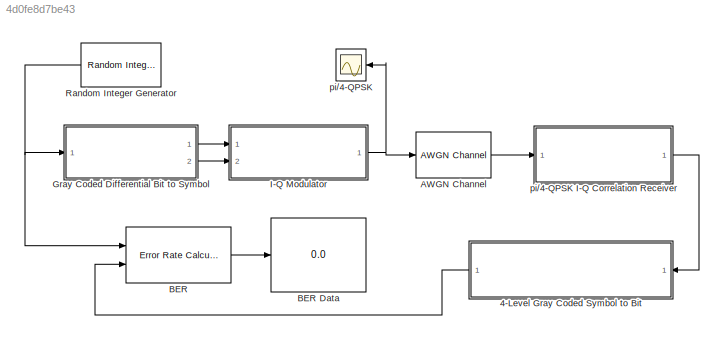
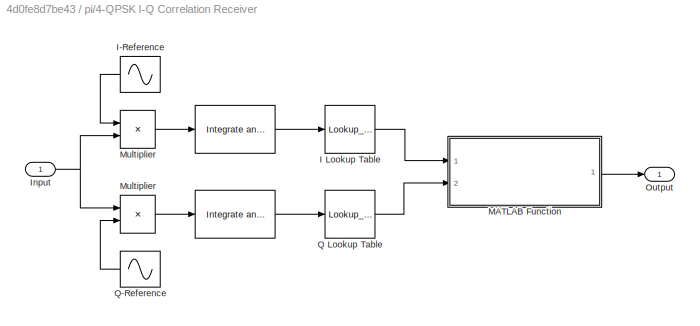
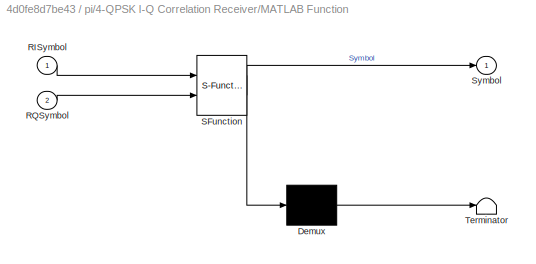
MODEL slx_4d0fe8d7be43
KIND model
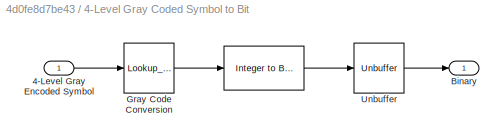
BLOCK [SubSystem] 4-Level Gray Coded Symbol to Bit
  Ports = [1, 1]
  RequestExecContextInheritance = off
BLOCK [Reference] 4-Level Gray Coded Symbol to Bit/   REF=commutil2/Integer to Bit
Converter
  Ports = [1, 1]
  SourceBlock = commutil2/Integer to Bit\nConverter
  SourceType = Integer to Bit Converter
  bitOrder = MSB first
  nbits = 2
  outDtype = double
  signedInputValues = Unsigned
BLOCK [Inport] 4-Level Gray Coded Symbol to Bit/4-Level Gray Encoded Symbol
  IconDisplay = Port number
BLOCK [Outport] 4-Level Gray Coded Symbol to Bit/Binary
  IconDisplay = Port number
BLOCK [Lookup_n-D] 4-Level Gray Coded Symbol to Bit/Gray Code Conversion
  BreakpointsForDimension1 = [0 1 2 3]
  InternalRulePriority = Speed
  NumberOfTableDimensions = 1
  Ports = [1, 1]
  RndMeth = Simplest
  Table = [0 1 3 2]
BLOCK [Unbuffer] 4-Level Gray Coded Symbol to Bit/Unbuffer
  Ports = [1, 1]
  SampleBasedProcessing = Same as frame based
BLOCK [Reference] AWGN Channel  REF=commchan3/AWGN
Channel
  EbNodB = 50
  EsNodB = 20
  InputProcessing = Inherited (this choice will be removed - see release notes)
  Ports = [1, 1]
  Ps = 12.5
  SNRdB = 10
  SourceBlock = commchan3/AWGN\nChannel
  SourceType = AWGN Channel
  Tsym = 2e-3
  UserDataPersistent = on
  bitsPerSym = 2
  noiseMode = Signal to noise ratio  (Eb/No)
  seed = randseed
  variance = 0
BLOCK [Reference] BER  REF=commsink2/Error Rate
Calculation
  N = 6
  PMode = Port
  Ports = [2, 1]
  RsMode2 = off
  SourceBlock = commsink2/Error Rate\nCalculation
  SourceType = Error Rate Calculation
  WsName = ErrorVec
  cp_mode = Entire frame
  maxBits = 1e6
  numErr = 100
  st_delay = 0
  stop = off
  subframe = []
BLOCK [Display] BER Data
  Decimation = 1
  Format = long
  Ports = [1]
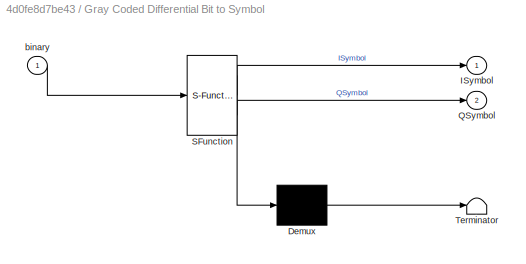
BLOCK [SubSystem] Gray Coded Differential Bit to Symbol
  ErrorFcn = Stateflow.Translate.translate
  PermitHierarchicalResolution = ExplicitOnly
  Ports = [1, 2]
  RequestExecContextInheritance = off
  SFBlockType = MATLAB Function
  TreatAsAtomicUnit = on
BLOCK [Demux] Gray Coded Differential Bit to Symbol/ Demux 
  Outputs = 1
  Ports = [1, 1]
BLOCK [S-Function] Gray Coded Differential Bit to Symbol/ SFunction 
  EnableBusSupport = on
  FunctionName = sf_sfun
  PortCounts = [1 3]
  Ports = [1, 3]
  Tag = Stateflow S-Function Fig357 1
BLOCK [Terminator] Gray Coded Differential Bit to Symbol/ Terminator 
BLOCK [Outport] Gray Coded Differential Bit to Symbol/ISymbol
  IconDisplay = Port number
BLOCK [Outport] Gray Coded Differential Bit to Symbol/QSymbol
  IconDisplay = Port number
  Port = 2
BLOCK [Inport] Gray Coded Differential Bit to Symbol/binary
  IconDisplay = Port number
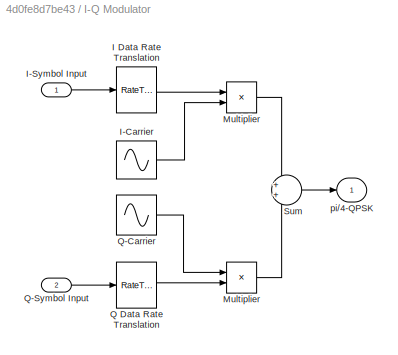
BLOCK [SubSystem] I-Q Modulator
  Ports = [2, 1]
  RequestExecContextInheritance = off
BLOCK [Product] I-Q Modulator/ Multiplier 
  InputSameDT = off
  OutDataTypeStr = Inherit: Inherit via internal rule
  Ports = [2, 1]
  SaturateOnIntegerOverflow = off
BLOCK [RateTransition] I-Q Modulator/I Data Rate Translation
  Deterministic = off
  Integrity = off
  OutPortSampleTime = 2e-6
BLOCK [Sin] I-Q Modulator/I-Carrier
  Amplitude = 5
  Frequency = 40000*pi
  Phase = pi/2
  Ports = [0, 1]
  SampleTime = 2e-6
  VectorParams1D = off
BLOCK [Inport] I-Q Modulator/I-Symbol Input
  IconDisplay = Port number
BLOCK [Product] I-Q Modulator/Multiplier
  InputSameDT = off
  OutDataTypeStr = Inherit: Inherit via internal rule
  Ports = [2, 1]
  SaturateOnIntegerOverflow = off
BLOCK [RateTransition] I-Q Modulator/Q Data Rate Translation
  Integrity = off
  OutPortSampleTime = 2e-6
BLOCK [Sin] I-Q Modulator/Q-Carrier
  Amplitude = 5
  Frequency = 40000*pi
  Ports = [0, 1]
  SampleTime = 2e-6
  VectorParams1D = off
BLOCK [Inport] I-Q Modulator/Q-Symbol Input
  IconDisplay = Port number
  Port = 2
BLOCK [Sum] I-Q Modulator/Sum
  IconShape = round
  InputSameDT = off
  OutDataTypeStr = Inherit: Inherit via internal rule
  Ports = [2, 1]
  SaturateOnIntegerOverflow = off
BLOCK [Outport] I-Q Modulator/pi//4-QPSK
  IconDisplay = Port number
BLOCK [Reference] Random Integer Generator  REF=commrandsrc2/Random Integer
Generator
  Ports = [0, 1]
  SourceBlock = commrandsrc2/Random Integer\nGenerator
  SourceType = Random Integer Generator
  Ts = 1e-3
  frameBased = off
  mul = 2
  orient = off
  outDataType = double
  sampPerFrame = 1
  seed = 59
BLOCK [Scope] pi//4-QPSK
  DataFormat = StructureWithTime
  Floating = off
  MaxDataPoints = 8001
  NumInputPorts = 1
  Ports = [1]
  SampleTime = 0
  ShowLegends = off
  TimeRange = 0.005
  YMax = 10
  YMin = -10
BLOCK [SubSystem] pi//4-QPSK I-Q Correlation Receiver
  Ports = [1, 1]
  RequestExecContextInheritance = off
BLOCK [Reference] pi//4-QPSK I-Q Correlation Receiver/   REF=commfilt2/Integrate
and Dump
  LockScale = off
  Ports = [1, 1]
  SourceBlock = commfilt2/Integrate\nand Dump
  SourceType = Integrate and Dump
  accumFracLength = 30
  accumMode = Inherit via internal rule
  accumWordLength = 32
  nodump = off
  obssamples = 1000
  offsetsamples = 500
  outputFracLength = 30
  outputMode = Same as accumulator
  outputWordLength = 32
  overflowMode = off
  roundingMode = Floor
BLOCK [Reference] pi//4-QPSK I-Q Correlation Receiver/    REF=commfilt2/Integrate
and Dump
  LockScale = off
  Ports = [1, 1]
  SourceBlock = commfilt2/Integrate\nand Dump
  SourceType = Integrate and Dump
  accumFracLength = 30
  accumMode = Inherit via internal rule
  accumWordLength = 32
  nodump = off
  obssamples = 1000
  offsetsamples = 500
  outputFracLength = 30
  outputMode = Same as accumulator
  outputWordLength = 32
  overflowMode = off
  roundingMode = Floor
BLOCK [Lookup_n-D] pi//4-QPSK I-Q Correlation Receiver/I Lookup Table
  BreakpointsForDimension1 = [-12500 -8838.8 0 8838.8 12500]
  InternalRulePriority = Speed
  InterpMethod = Nearest
  NumberOfTableDimensions = 1
  Ports = [1, 1]
  RndMeth = Simplest
  Table = [-1 -0.70705 0 0.70705 1]
BLOCK [Sin] pi//4-QPSK I-Q Correlation Receiver/I-Reference
  Amplitude = 5
  Frequency = 40000*pi
  Phase = pi/2
  Ports = [0, 1]
  SampleTime = 2e-6
BLOCK [Inport] pi//4-QPSK I-Q Correlation Receiver/Input
  IconDisplay = Port number
BLOCK [SubSystem] pi//4-QPSK I-Q Correlation Receiver/MATLAB Function
  ErrorFcn = Stateflow.Translate.translate
  PermitHierarchicalResolution = ExplicitOnly
  Ports = [2, 1]
  RequestExecContextInheritance = off
  SFBlockType = MATLAB Function
  TreatAsAtomicUnit = on
BLOCK [Demux] pi//4-QPSK I-Q Correlation Receiver/MATLAB Function/ Demux 
  Outputs = 1
  Ports = [1, 1]
BLOCK [S-Function] pi//4-QPSK I-Q Correlation Receiver/MATLAB Function/ SFunction 
  EnableBusSupport = on
  FunctionName = sf_sfun
  PortCounts = [2 2]
  Ports = [2, 2]
  Tag = Stateflow S-Function Fig357 2
BLOCK [Terminator] pi//4-QPSK I-Q Correlation Receiver/MATLAB Function/ Terminator 
BLOCK [Inport] pi//4-QPSK I-Q Correlation Receiver/MATLAB Function/RISymbol
  IconDisplay = Port number
BLOCK [Inport] pi//4-QPSK I-Q Correlation Receiver/MATLAB Function/RQSymbol
  IconDisplay = Port number
  Port = 2
BLOCK [Outport] pi//4-QPSK I-Q Correlation Receiver/MATLAB Function/Symbol
  IconDisplay = Port number
BLOCK [Product] pi//4-QPSK I-Q Correlation Receiver/Multiplier
  InputSameDT = off
  OutDataTypeStr = Inherit: Inherit via internal rule
  Ports = [2, 1]
  SaturateOnIntegerOverflow = off
BLOCK [Product] pi//4-QPSK I-Q Correlation Receiver/Multiplier 
  InputSameDT = off
  OutDataTypeStr = Inherit: Inherit via internal rule
  Ports = [2, 1]
  SaturateOnIntegerOverflow = off
BLOCK [Outport] pi//4-QPSK I-Q Correlation Receiver/Output
  IconDisplay = Port number
BLOCK [Lookup_n-D] pi//4-QPSK I-Q Correlation Receiver/Q Lookup Table
  BreakpointsForDimension1 = [-12500 -8838.8 0 8838.8 12500]
  InternalRulePriority = Speed
  InterpMethod = Nearest
  NumberOfTableDimensions = 1
  Ports = [1, 1]
  RndMeth = Simplest
  Table = [-1 -0.70705 0 0.70705 1]
BLOCK [Sin] pi//4-QPSK I-Q Correlation Receiver/Q-Reference
  Amplitude = 5
  Frequency = 40000*pi
  Ports = [0, 1]
  SampleTime = 2e-6
LINE 4-Level Gray Coded Symbol to Bit/ :1 -> 4-Level Gray Coded Symbol to Bit/Unbuffer:1
LINE 4-Level Gray Coded Symbol to Bit/4-Level Gray Encoded Symbol:1 -> 4-Level Gray Coded Symbol to Bit/Gray Code Conversion:1
LINE 4-Level Gray Coded Symbol to Bit/Gray Code Conversion:1 -> 4-Level Gray Coded Symbol to Bit/ :1
LINE 4-Level Gray Coded Symbol to Bit/Unbuffer:1 -> 4-Level Gray Coded Symbol to Bit/Binary:1
LINE 4-Level Gray Coded Symbol to Bit:1 -> BER:2
LINE AWGN Channel:1 -> pi//4-QPSK I-Q Correlation Receiver:1
LINE BER:1 -> BER Data:1
LINE Gray Coded Differential Bit to Symbol:1 -> I-Q Modulator:1
LINE Gray Coded Differential Bit to Symbol:2 -> I-Q Modulator:2
LINE I-Q Modulator/ Multiplier :1 -> I-Q Modulator/Sum:2
LINE I-Q Modulator/I Data Rate Translation:1 -> I-Q Modulator/Multiplier:1
LINE I-Q Modulator/I-Carrier:1 -> I-Q Modulator/Multiplier:2
LINE I-Q Modulator/I-Symbol Input:1 -> I-Q Modulator/I Data Rate Translation:1
LINE I-Q Modulator/Multiplier:1 -> I-Q Modulator/Sum:1
LINE I-Q Modulator/Q Data Rate Translation:1 -> I-Q Modulator/ Multiplier :2
LINE I-Q Modulator/Q-Carrier:1 -> I-Q Modulator/ Multiplier :1
LINE I-Q Modulator/Q-Symbol Input:1 -> I-Q Modulator/Q Data Rate Translation:1
LINE I-Q Modulator/Sum:1 -> I-Q Modulator/pi//4-QPSK:1
NET I-Q Modulator:1 -> AWGN Channel:1, pi//4-QPSK:1
NET Random Integer Generator:1 -> BER:1, Gray Coded Differential Bit to Symbol:1
LINE pi//4-QPSK I-Q Correlation Receiver/  :1 -> pi//4-QPSK I-Q Correlation Receiver/Q Lookup Table:1
LINE pi//4-QPSK I-Q Correlation Receiver/ :1 -> pi//4-QPSK I-Q Correlation Receiver/I Lookup Table:1
LINE pi//4-QPSK I-Q Correlation Receiver/I Lookup Table:1 -> pi//4-QPSK I-Q Correlation Receiver/MATLAB Function:1
LINE pi//4-QPSK I-Q Correlation Receiver/I-Reference:1 -> pi//4-QPSK I-Q Correlation Receiver/Multiplier :1
NET pi//4-QPSK I-Q Correlation Receiver/Input:1 -> pi//4-QPSK I-Q Correlation Receiver/Multiplier :2, pi//4-QPSK I-Q Correlation Receiver/Multiplier:1
LINE pi//4-QPSK I-Q Correlation Receiver/MATLAB Function:1 -> pi//4-QPSK I-Q Correlation Receiver/Output:1
LINE pi//4-QPSK I-Q Correlation Receiver/Multiplier :1 -> pi//4-QPSK I-Q Correlation Receiver/ :1
LINE pi//4-QPSK I-Q Correlation Receiver/Multiplier:1 -> pi//4-QPSK I-Q Correlation Receiver/  :1
LINE pi//4-QPSK I-Q Correlation Receiver/Q Lookup Table:1 -> pi//4-QPSK I-Q Correlation Receiver/MATLAB Function:2
LINE pi//4-QPSK I-Q Correlation Receiver/Q-Reference:1 -> pi//4-QPSK I-Q Correlation Receiver/Multiplier:2
LINE pi//4-QPSK I-Q Correlation Receiver:1 -> 4-Level Gray Coded Symbol to Bit:1
note: NET lines group one-source signal fan-out (src -> all destinations, sorted); 1:1 wires keep LINE
CHART Gray Coded Differential
 Bit to Symbol states=1 transitions=1
  STATE_LABEL 'eML_blk_kernel()'
  STATE_LABEL 'SCRIPT:\nfunction [ISymbol, QSymbol]  = fcn(binary)\n%#codegen\npersistent flag dIbit dISymbol dQSymbol\n\nif isempty(flag)\n    flag = 0;\n    dISymbol = 1;       %initial values  \n    dQSymbol = 0;\n    dIbit = 0;\nend\n\nif (flag == 0)          %MSB\n    ISymbol = dISymbol;\n    QSymbol = dQSymbol;\n    dIbit = binary;\n    flag = 1;\nelse\n    if (dIbit == 1)     %Gray codingo using LSB\n        if (binary == 0...<+329ch>'
CHART pi//4-QPSK I-Q Correlation
Receiver/MATLAB Function states=1 transitions=1
  STATE_LABEL 'eML_blk_kernel()'
  STATE_LABEL 'SCRIPT:\nfunction Symbol  = fcn(RISymbol, RQSymbol)\n%#codegen\npersistent dRISymbol dRQSymbol\n\nif isempty(dRISymbol)\n    dRISymbol = 0;\n    dRQSymbol = 0;\n    Symbol = 0;\nend\n\n    if ((RQSymbol*dRQSymbol + RISymbol*dRISymbol)>0)\n        MSB = 1;\n    else\n        MSB = 0;\n    end\n    if ((dRISymbol*RQSymbol - RISymbol*dRQSymbol)>0)\n        LSB = 1;\n    else\n        LSB = 0;\n    end\n    dRISymbol = RI...<+74ch>'
